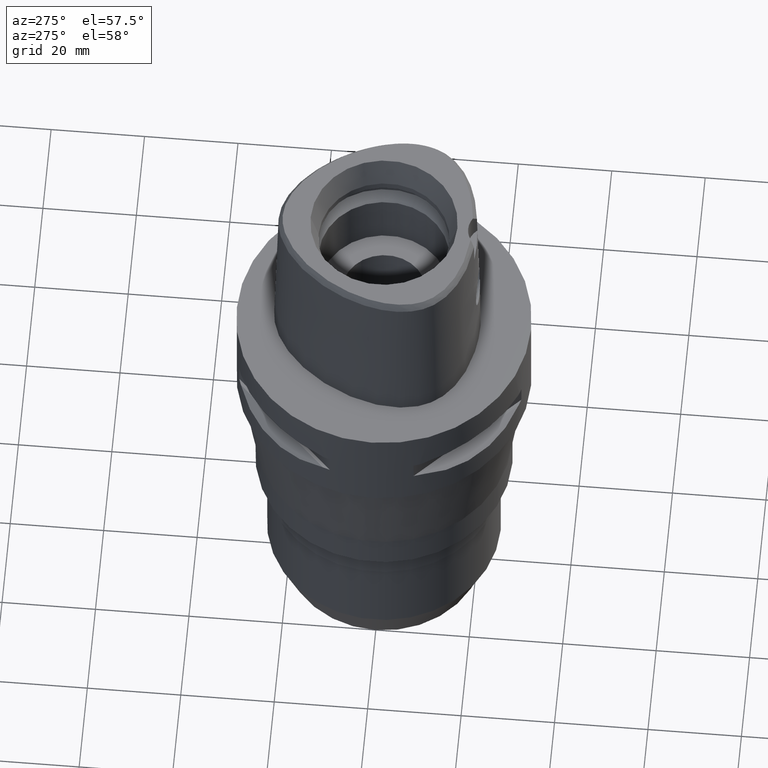
[diagram: clean part render]
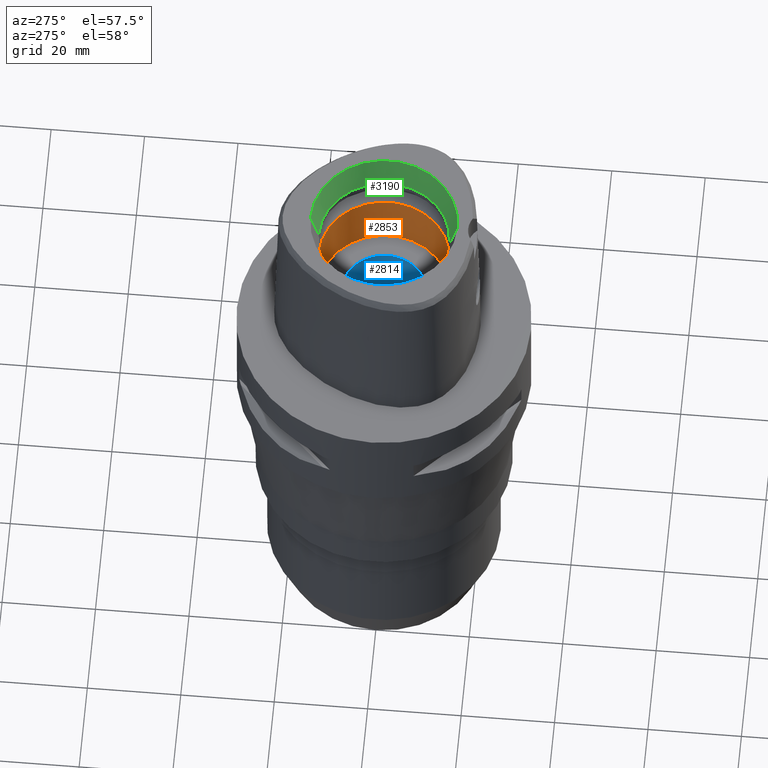
[diagram: same view with three faces highlighted in distinct colors, each labeled with its STEP entity id]
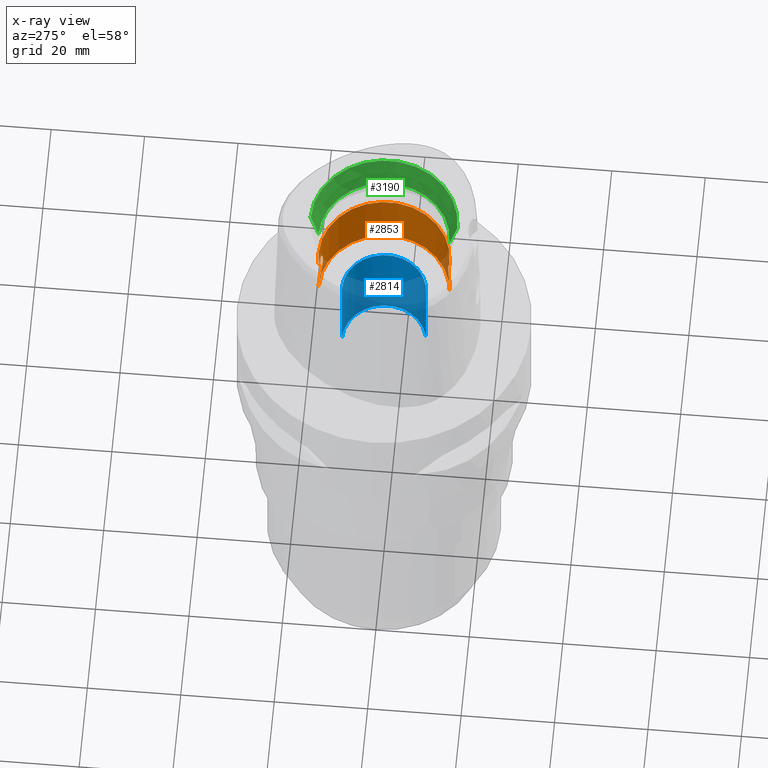
[diagram: x-ray of the same camera — body ghosted, the three highlighted faces saturated]
A machine part, auxiliary view with three faces highlighted in distinct colors.
The next image is the same camera in x-ray (body ghosted, the three faces saturated) — at least one of them is partly hidden behind the body in this view.
Their STEP definitions:

[orange] entity #2853 — the highlighted cylindrical surface (partial cylindrical patch) has radius 14 mm, axis along (0, 0, -1).
#842=CARTESIAN_POINT('',(0.E0,0.E0,1.1E1));
#843=DIRECTION('',(0.E0,0.E0,-1.E0));
#844=DIRECTION('',(0.E0,1.E0,0.E0));
#845=AXIS2_PLACEMENT_3D('',#842,#843,#844);
#874=CARTESIAN_POINT('',(0.E0,1.4E1,1.145E1));
#875=CARTESIAN_POINT('',(3.257144545379E-1,1.4E1,1.145E1));
#876=CARTESIAN_POINT('',(9.593415615361E-1,1.397751429725E1,1.152681160103E1));
#877=CARTESIAN_POINT('',(1.868233590392E0,1.388409645246E1,1.186265110699E1));
#878=CARTESIAN_POINT('',(2.685009502818E0,1.374717101718E1,1.241480063107E1));
#879=CARTESIAN_POINT('',(3.352592352032E0,1.359691586393E1,1.315492608126E1));
#880=CARTESIAN_POINT('',(3.824718947743E0,1.346902389972E1,1.404865533159E1));
#881=CARTESIAN_POINT('',(4.059972485821E0,1.339843259849E1,1.500867324322E1));
#882=CARTESIAN_POINT('',(4.058768199920E0,1.339880595545E1,1.599234325395E1));
#883=CARTESIAN_POINT('',(3.830217828408E0,1.346733835159E1,1.693067896133E1));
#884=CARTESIAN_POINT('',(3.376548096141E0,1.359070487378E1,1.780819439894E1));
#885=CARTESIAN_POINT('',(2.721761822695E0,1.373987178788E1,1.855361803621E1));
#886=CARTESIAN_POINT('',(1.896707547861E0,1.388065541092E1,1.912490022073E1));
#887=CARTESIAN_POINT('',(9.657444874258E-1,1.397745693152E1,1.947305099177E1));
#888=CARTESIAN_POINT('',(3.272318661774E-1,1.4E1,1.955E1));
#889=CARTESIAN_POINT('',(0.E0,1.4E1,1.955E1));
#894=DIRECTION('',(0.E0,0.E0,1.E0));
#895=VECTOR('',#894,4.65E0);
#896=CARTESIAN_POINT('',(0.E0,1.4E1,1.955E1));
#897=LINE('',#896,#895);
#901=CARTESIAN_POINT('',(0.E0,-1.4E1,1.955E1));
#902=CARTESIAN_POINT('',(3.257061333188E-1,-1.4E1,1.955E1));
#903=CARTESIAN_POINT('',(9.593260942823E-1,-1.397751580988E1,1.947319364039E1));
#904=CARTESIAN_POINT('',(1.868259288005E0,-1.388409394846E1,1.913734030015E1));
#905=CARTESIAN_POINT('',(2.685056185638E0,-1.374716162752E1,1.858515917491E1));
#906=CARTESIAN_POINT('',(3.352605798371E0,-1.359691221125E1,1.784504796155E1));
#907=CARTESIAN_POINT('',(3.824737663849E0,-1.346901880628E1,1.695131699619E1));
#908=CARTESIAN_POINT('',(4.060003876242E0,-1.339842300871E1,1.599114806812E1));
#909=CARTESIAN_POINT('',(4.058737934530E0,-1.339881522562E1,1.500747844467E1));
#910=CARTESIAN_POINT('',(3.830191806853E0,-1.346734554971E1,1.406927337287E1));
#911=CARTESIAN_POINT('',(3.376535241766E0,-1.359070823933E1,1.319178275893E1));
#912=CARTESIAN_POINT('',(2.721722737381E0,-1.373987978096E1,1.244634769440E1));
#913=CARTESIAN_POINT('',(1.896685044685E0,-1.388065765475E1,1.187509187779E1));
#914=CARTESIAN_POINT('',(9.657585200220E-1,-1.397745554793E1,1.152695382942E1));
#915=CARTESIAN_POINT('',(3.272392978414E-1,-1.4E1,1.145E1));
#916=CARTESIAN_POINT('',(0.E0,-1.4E1,1.145E1));
#921=DIRECTION('',(0.E0,0.E0,1.E0));
#922=VECTOR('',#921,4.5E-1);
#923=CARTESIAN_POINT('',(0.E0,1.4E1,1.1E1));
#924=LINE('',#923,#922);
#962=DIRECTION('',(0.E0,0.E0,1.E0));
#963=VECTOR('',#962,4.65E0);
#964=CARTESIAN_POINT('',(0.E0,-1.4E1,1.955E1));
#965=LINE('',#964,#963);
#989=DIRECTION('',(0.E0,0.E0,1.E0));
#990=VECTOR('',#989,4.5E-1);
#991=CARTESIAN_POINT('',(0.E0,-1.4E1,1.1E1));
#992=LINE('',#991,#990);
#1105=CARTESIAN_POINT('',(0.E0,0.E0,2.42E1));
#1106=DIRECTION('',(0.E0,0.E0,1.E0));
#1107=DIRECTION('',(0.E0,-1.E0,0.E0));
#1108=AXIS2_PLACEMENT_3D('',#1105,#1106,#1107);
#1672=CARTESIAN_POINT('',(0.E0,1.4E1,1.1E1));
#1673=CARTESIAN_POINT('',(0.E0,-1.4E1,1.1E1));
#1674=VERTEX_POINT('',#1672);
#1675=VERTEX_POINT('',#1673);
#1676=VERTEX_POINT('',#874);
#1677=VERTEX_POINT('',#889);
#1678=CARTESIAN_POINT('',(0.E0,1.4E1,2.42E1));
#1679=VERTEX_POINT('',#1678);
#1680=CARTESIAN_POINT('',(0.E0,-1.4E1,2.42E1));
#1681=VERTEX_POINT('',#1680);
#1682=CARTESIAN_POINT('',(0.E0,-1.4E1,1.955E1));
#1683=VERTEX_POINT('',#1682);
#1684=VERTEX_POINT('',#916);
#2831=CARTESIAN_POINT('',(0.E0,0.E0,3.99E1));
#2832=DIRECTION('',(0.E0,0.E0,-1.E0));
#2833=DIRECTION('',(0.E0,-1.E0,0.E0));
#2834=AXIS2_PLACEMENT_3D('',#2831,#2832,#2833);
#2835=CYLINDRICAL_SURFACE('',#2834,1.4E1);
#2837=ORIENTED_EDGE('',*,*,#2836,.T.);
#2839=ORIENTED_EDGE('',*,*,#2838,.T.);
#2841=ORIENTED_EDGE('',*,*,#2840,.F.);
#2843=ORIENTED_EDGE('',*,*,#2842,.F.);
#2845=ORIENTED_EDGE('',*,*,#2844,.T.);
#2847=ORIENTED_EDGE('',*,*,#2846,.F.);
#2848=ORIENTED_EDGE('',*,*,#2820,.F.);
#2850=ORIENTED_EDGE('',*,*,#2849,.T.);
#2851=EDGE_LOOP('',(#2837,#2839,#2841,#2843,#2845,#2847,#2848,#2850));
#2852=FACE_OUTER_BOUND('',#2851,.F.);
#846=CIRCLE('',#845,1.4E1);
#890=B_SPLINE_CURVE_WITH_KNOTS('',3,(#874,#875,#876,#877,#878,#879,#880,#881,
#882,#883,#884,#885,#886,#887,#888,#889),.UNSPECIFIED.,.F.,.F.,(4,1,1,1,1,1,1,1,
1,1,1,1,1,4),(0.E0,7.692307692308E-2,1.538461538462E-1,2.307692307692E-1,
3.076923076923E-1,3.846153846154E-1,4.615384615385E-1,5.384615384615E-1,
6.153846153846E-1,6.923076923077E-1,7.692307692308E-1,8.461538461538E-1,
9.230769230769E-1,1.E0),.UNSPECIFIED.);
#917=B_SPLINE_CURVE_WITH_KNOTS('',3,(#901,#902,#903,#904,#905,#906,#907,#908,
#909,#910,#911,#912,#913,#914,#915,#916),.UNSPECIFIED.,.F.,.F.,(4,1,1,1,1,1,1,1,
1,1,1,1,1,4),(0.E0,7.692307692308E-2,1.538461538462E-1,2.307692307692E-1,
3.076923076923E-1,3.846153846154E-1,4.615384615385E-1,5.384615384615E-1,
6.153846153846E-1,6.923076923077E-1,7.692307692308E-1,8.461538461538E-1,
9.230769230769E-1,1.E0),.UNSPECIFIED.);
#1109=CIRCLE('',#1108,1.4E1);
#2820=EDGE_CURVE('',#1674,#1675,#846,.T.);
#2836=EDGE_CURVE('',#1676,#1677,#890,.T.);
#2838=EDGE_CURVE('',#1677,#1679,#897,.T.);
#2840=EDGE_CURVE('',#1681,#1679,#1109,.T.);
#2842=EDGE_CURVE('',#1683,#1681,#965,.T.);
#2844=EDGE_CURVE('',#1683,#1684,#917,.T.);
#2846=EDGE_CURVE('',#1675,#1684,#992,.T.);
#2849=EDGE_CURVE('',#1674,#1676,#924,.T.);
#2853=ADVANCED_FACE('',(#2852),#2835,.F.);

[blue] entity #2814 — the highlighted cylindrical surface (partial cylindrical patch) has radius 9 mm, axis along (0, 0, -1).
#820=CARTESIAN_POINT('',(0.E0,0.E0,-9.E0));
#821=DIRECTION('',(0.E0,0.E0,-1.E0));
#822=DIRECTION('',(0.E0,1.E0,0.E0));
#823=AXIS2_PLACEMENT_3D('',#820,#821,#822);
#828=DIRECTION('',(0.E0,0.E0,-1.E0));
#829=VECTOR('',#828,2.E1);
#830=CARTESIAN_POINT('',(0.E0,-9.E0,1.1E1));
#831=LINE('',#830,#829);
#835=DIRECTION('',(0.E0,0.E0,1.E0));
#836=VECTOR('',#835,2.E1);
#837=CARTESIAN_POINT('',(0.E0,9.E0,-9.E0));
#838=LINE('',#837,#836);
#866=CARTESIAN_POINT('',(0.E0,0.E0,1.1E1));
#867=DIRECTION('',(0.E0,0.E0,1.E0));
#868=DIRECTION('',(0.E0,-1.E0,0.E0));
#869=AXIS2_PLACEMENT_3D('',#866,#867,#868);
#1664=CARTESIAN_POINT('',(0.E0,-9.E0,-9.E0));
#1665=CARTESIAN_POINT('',(0.E0,9.E0,-9.E0));
#1666=VERTEX_POINT('',#1664);
#1667=VERTEX_POINT('',#1665);
#1668=CARTESIAN_POINT('',(0.E0,9.E0,1.1E1));
#1669=VERTEX_POINT('',#1668);
#1670=CARTESIAN_POINT('',(0.E0,-9.E0,1.1E1));
#1671=VERTEX_POINT('',#1670);
#2802=CARTESIAN_POINT('',(0.E0,0.E0,3.99E1));
#2803=DIRECTION('',(0.E0,0.E0,-1.E0));
#2804=DIRECTION('',(0.E0,-1.E0,0.E0));
#2805=AXIS2_PLACEMENT_3D('',#2802,#2803,#2804);
#2806=CYLINDRICAL_SURFACE('',#2805,9.E0);
#2807=ORIENTED_EDGE('',*,*,#2795,.T.);
#2808=ORIENTED_EDGE('',*,*,#2782,.F.);
#2809=ORIENTED_EDGE('',*,*,#2792,.T.);
#2811=ORIENTED_EDGE('',*,*,#2810,.F.);
#2812=EDGE_LOOP('',(#2807,#2808,#2809,#2811));
#2813=FACE_OUTER_BOUND('',#2812,.F.);
#824=CIRCLE('',#823,9.E0);
#870=CIRCLE('',#869,9.E0);
#2782=EDGE_CURVE('',#1667,#1666,#824,.T.);
#2792=EDGE_CURVE('',#1667,#1669,#838,.T.);
#2795=EDGE_CURVE('',#1671,#1666,#831,.T.);
#2810=EDGE_CURVE('',#1671,#1669,#870,.T.);
#2814=ADVANCED_FACE('',(#2813),#2806,.F.);

[green] entity #3190 — the highlighted conical surface has half-angle 15 deg.
#128=CARTESIAN_POINT('',(0.E0,0.E0,3.8E1));
#129=DIRECTION('',(0.E0,0.E0,1.E0));
#130=DIRECTION('',(0.E0,-1.E0,0.E0));
#131=AXIS2_PLACEMENT_3D('',#128,#129,#130);
#1212=DIRECTION('',(0.E0,-2.588190451026E-1,9.659258262891E-1));
#1213=VECTOR('',#1212,6.625767554625E0);
#1214=CARTESIAN_POINT('',(0.E0,-1.4E1,3.16E1));
#1215=LINE('',#1214,#1213);
#1219=CARTESIAN_POINT('',(0.E0,0.E0,3.16E1));
#1220=DIRECTION('',(0.E0,0.E0,1.E0));
#1221=DIRECTION('',(0.E0,-1.E0,0.E0));
#1222=AXIS2_PLACEMENT_3D('',#1219,#1220,#1221);
#1227=DIRECTION('',(0.E0,2.588190451026E-1,9.659258262891E-1));
#1228=VECTOR('',#1227,6.625767554625E0);
#1229=CARTESIAN_POINT('',(0.E0,1.4E1,3.16E1));
#1230=LINE('',#1229,#1228);
#1541=CARTESIAN_POINT('',(0.E0,1.571487483156E1,3.8E1));
#1542=CARTESIAN_POINT('',(0.E0,-1.571487483156E1,3.8E1));
#1543=VERTEX_POINT('',#1541);
#1544=VERTEX_POINT('',#1542);
#1701=CARTESIAN_POINT('',(0.E0,-1.4E1,3.16E1));
#1702=VERTEX_POINT('',#1701);
#1703=CARTESIAN_POINT('',(0.E0,1.4E1,3.16E1));
#1704=VERTEX_POINT('',#1703);
#3179=CARTESIAN_POINT('',(0.E0,0.E0,3.48E1));
#3180=DIRECTION('',(0.E0,0.E0,1.E0));
#3181=DIRECTION('',(0.E0,1.E0,0.E0));
#3182=AXIS2_PLACEMENT_3D('',#3179,#3180,#3181);
#3183=CONICAL_SURFACE('',#3182,1.485743741578E1,1.5E1);
#3184=ORIENTED_EDGE('',*,*,#1722,.F.);
#3185=ORIENTED_EDGE('',*,*,#3174,.F.);
#3186=ORIENTED_EDGE('',*,*,#3147,.T.);
#3187=ORIENTED_EDGE('',*,*,#3171,.T.);
#3188=EDGE_LOOP('',(#3184,#3185,#3186,#3187));
#3189=FACE_OUTER_BOUND('',#3188,.F.);
#132=CIRCLE('',#131,1.571487483156E1);
#1223=CIRCLE('',#1222,1.4E1);
#1722=EDGE_CURVE('',#1544,#1543,#132,.T.);
#3147=EDGE_CURVE('',#1702,#1704,#1223,.T.);
#3171=EDGE_CURVE('',#1704,#1543,#1230,.T.);
#3174=EDGE_CURVE('',#1702,#1544,#1215,.T.);
#3190=ADVANCED_FACE('',(#3189),#3183,.F.);